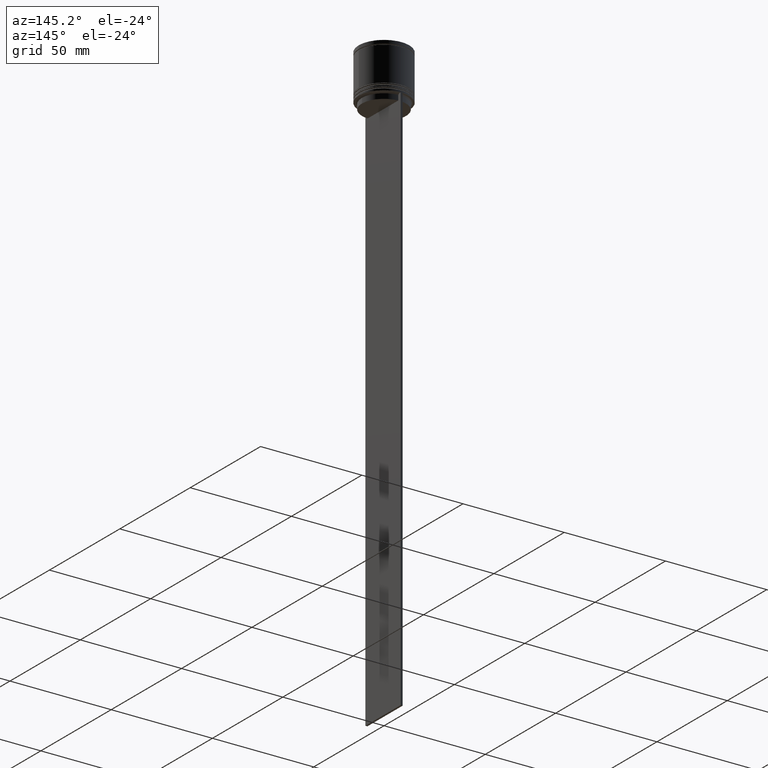
[diagram: clean part render]
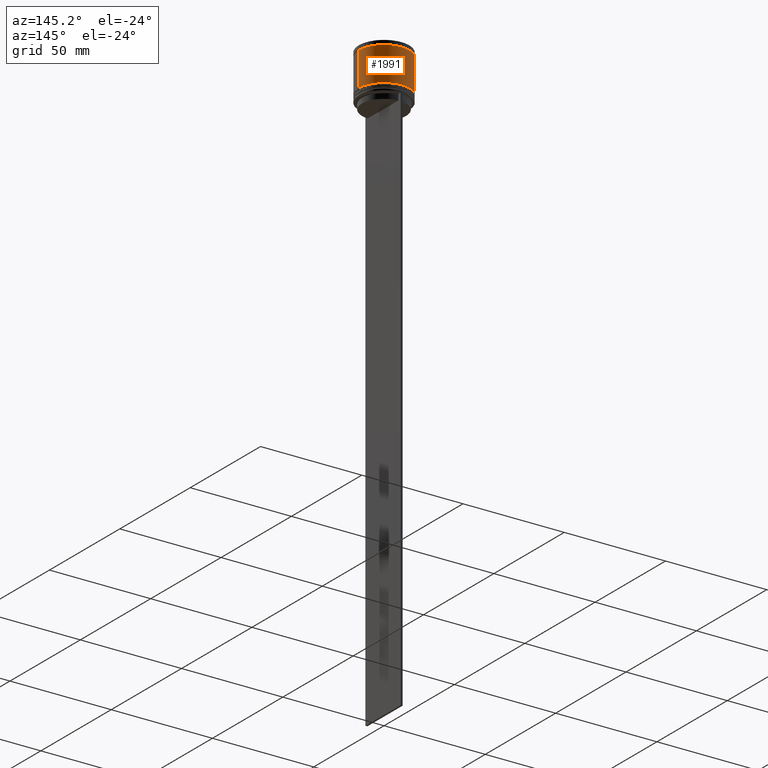
[diagram: same view with one face highlighted and labeled with its STEP entity id]
A machine part, auxiliary view. The second image highlights one B-rep face of the part: STEP entity #1991.
In plain terms, the highlighted cylindrical surface (edge-blend (fillet) strip) has radius 12.5 mm, axis along (-0, -0, 1).
Its self-contained STEP definition (entity closure, byte-faithful):
#11 = CARTESIAN_POINT ( 'NONE',  ( -12.49999999999999645, 1.530808498934191324E-15, -2.199999999999994404 ) ) ;
#44 = CARTESIAN_POINT ( 'NONE',  ( -12.50000000000000355, 1.530808498934191916E-15, -19.00000000000000000 ) ) ;
#76 = VERTEX_POINT ( 'NONE', #1402 ) ;
#183 = LINE ( 'NONE', #473, #774 ) ;
#387 = DIRECTION ( 'NONE',  ( 1.000000000000000000, 0.000000000000000000, 0.000000000000000000 ) ) ;
#390 = ORIENTED_EDGE ( 'NONE', *, *, #560, .F. ) ;
#392 = DIRECTION ( 'NONE',  ( -0.000000000000000000, -0.000000000000000000, 1.000000000000000000 ) ) ;
#473 = CARTESIAN_POINT ( 'NONE',  ( 12.50000000000000000, 0.000000000000000000, 0.000000000000000000 ) ) ;
#515 = DIRECTION ( 'NONE',  ( 1.000000000000000000, 0.000000000000000000, 0.000000000000000000 ) ) ;
#544 = FACE_OUTER_BOUND ( 'NONE', #1764, .T. ) ;
#560 = EDGE_CURVE ( 'NONE', #1686, #76, #183, .T. ) ;
#577 = EDGE_CURVE ( 'NONE', #76, #973, #580, .T. ) ;
#580 = CIRCLE ( 'NONE', #1046, 12.49999999999999645 ) ;
#583 = ORIENTED_EDGE ( 'NONE', *, *, #1103, .T. ) ;
#693 = CIRCLE ( 'NONE', #965, 12.50000000000000178 ) ;
#716 = CARTESIAN_POINT ( 'NONE',  ( 12.50000000000000178, 0.000000000000000000, -19.00000000000000000 ) ) ;
#773 = CARTESIAN_POINT ( 'NONE',  ( 0.000000000000000000, 0.000000000000000000, -19.00000000000000000 ) ) ;
#774 = VECTOR ( 'NONE', #1947, 1000.000000000000000 ) ;
#851 = CARTESIAN_POINT ( 'NONE',  ( -12.50000000000000000, 1.530808498934191521E-15, 0.000000000000000000 ) ) ;
#887 = CARTESIAN_POINT ( 'NONE',  ( 0.000000000000000000, 0.000000000000000000, 0.000000000000000000 ) ) ;
#965 = AXIS2_PLACEMENT_3D ( 'NONE', #773, #1542, #1697 ) ;
#973 = VERTEX_POINT ( 'NONE', #11 ) ;
#1034 = AXIS2_PLACEMENT_3D ( 'NONE', #887, #1196, #387 ) ;
#1046 = AXIS2_PLACEMENT_3D ( 'NONE', #1311, #1954, #515 ) ;
#1071 = VERTEX_POINT ( 'NONE', #44 ) ;
#1103 = EDGE_CURVE ( 'NONE', #1071, #973, #1330, .T. ) ;
#1194 = ORIENTED_EDGE ( 'NONE', *, *, #1608, .T. ) ;
#1196 = DIRECTION ( 'NONE',  ( -0.000000000000000000, -0.000000000000000000, 1.000000000000000000 ) ) ;
#1311 = CARTESIAN_POINT ( 'NONE',  ( 0.000000000000000000, 0.000000000000000000, -2.199999999999994404 ) ) ;
#1330 = LINE ( 'NONE', #851, #1420 ) ;
#1374 = ORIENTED_EDGE ( 'NONE', *, *, #577, .F. ) ;
#1402 = CARTESIAN_POINT ( 'NONE',  ( 12.49999999999999645, 0.000000000000000000, -2.199999999999994404 ) ) ;
#1420 = VECTOR ( 'NONE', #392, 1000.000000000000000 ) ;
#1542 = DIRECTION ( 'NONE',  ( -0.000000000000000000, -0.000000000000000000, 1.000000000000000000 ) ) ;
#1608 = EDGE_CURVE ( 'NONE', #1686, #1071, #693, .T. ) ;
#1686 = VERTEX_POINT ( 'NONE', #716 ) ;
#1697 = DIRECTION ( 'NONE',  ( 1.000000000000000000, 0.000000000000000000, 0.000000000000000000 ) ) ;
#1764 = EDGE_LOOP ( 'NONE', ( #1194, #583, #1374, #390 ) ) ;
#1835 = CYLINDRICAL_SURFACE ( 'NONE', #1034, 12.50000000000000000 ) ;
#1947 = DIRECTION ( 'NONE',  ( -0.000000000000000000, -0.000000000000000000, 1.000000000000000000 ) ) ;
#1954 = DIRECTION ( 'NONE',  ( -0.000000000000000000, -0.000000000000000000, 1.000000000000000000 ) ) ;
#1991 = ADVANCED_FACE ( 'NONE', ( #544 ), #1835, .T. ) ;